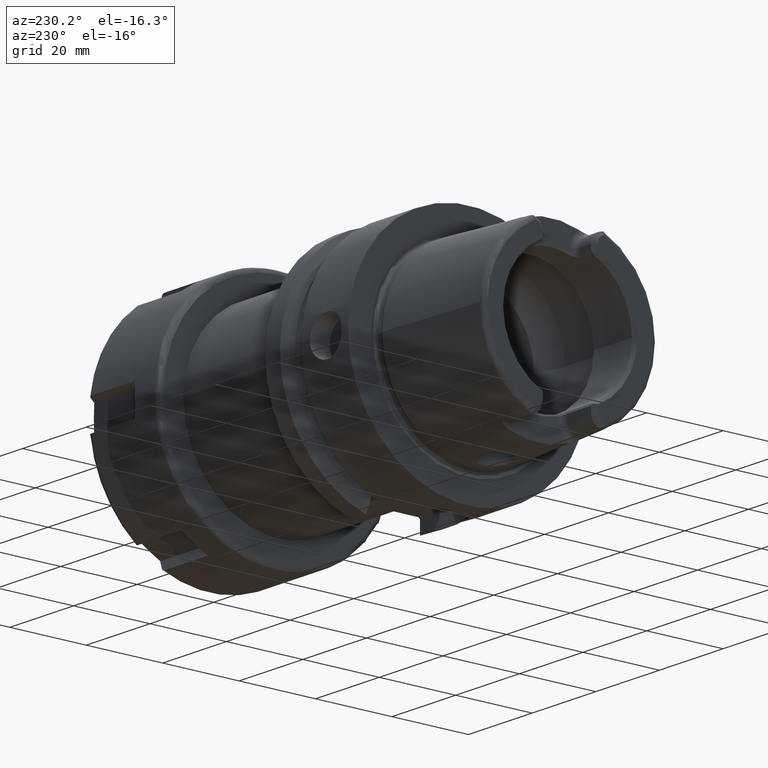
[diagram: clean part render]
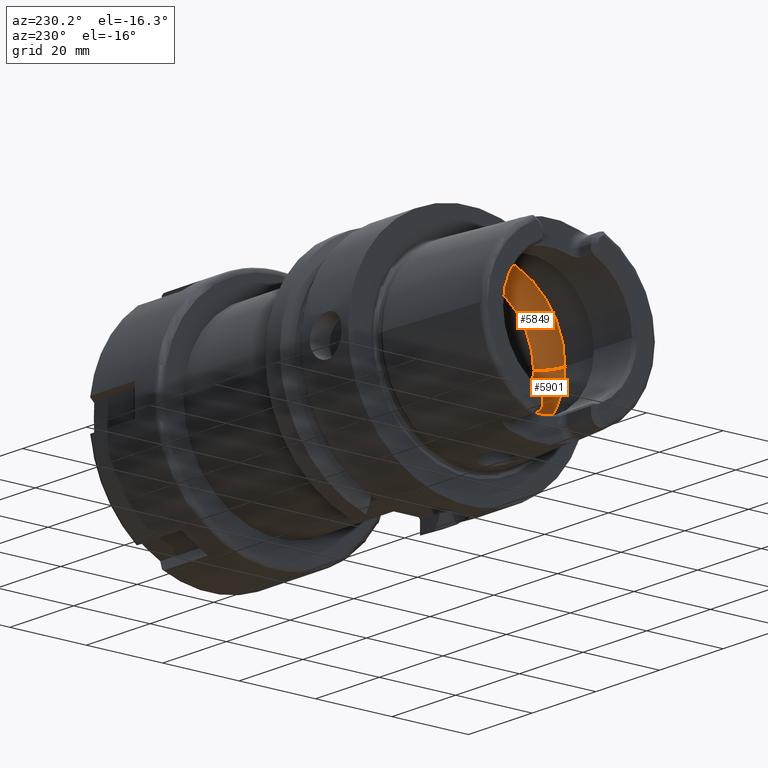
[diagram: same view with one multi-face feature highlighted, each face labeled with its STEP entity id]
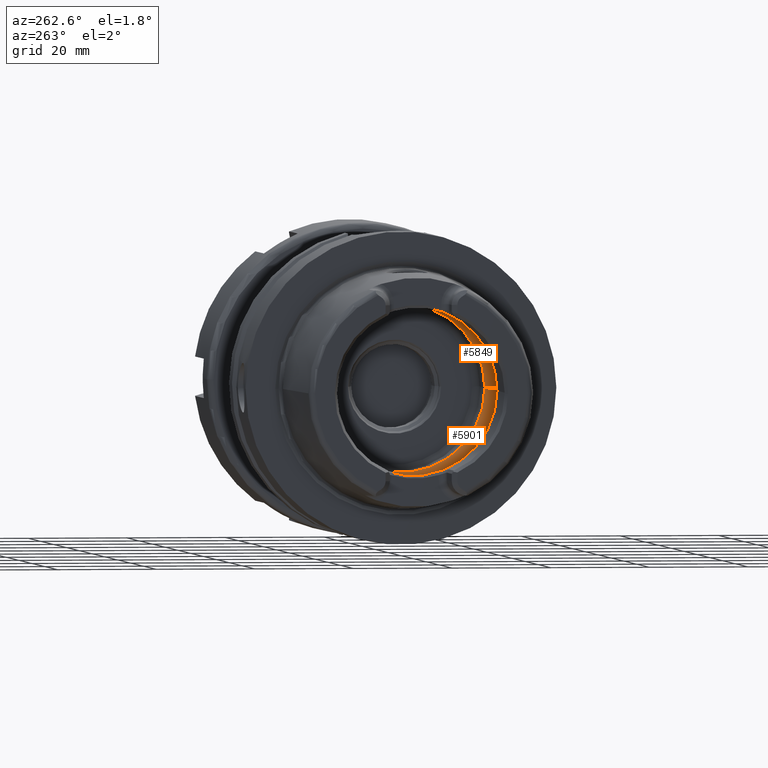
[diagram: same view with one multi-face feature highlighted, each face labeled with its STEP entity id]
A machine part, auxiliary view. The highlighted faces form ONE feature: a constant-radius fillet chain: 2 tangent blend faces with common blend radius 8 mm. The faces share edges in the B-rep.
A second angle (auxiliary view) of the same feature is appended — it is thin or edge-on in the first view.
Their STEP definitions:
[1] entity #5849 (Torus):
#2210=CARTESIAN_POINT('',(-5.25E0,0.E0,1.992470689575E1));
#2211=CARTESIAN_POINT('',(-5.25E0,1.634249880127E-1,1.992470689575E1));
#2212=CARTESIAN_POINT('',(-5.271317000323E0,4.905125142286E-1,
1.992366860007E1));
#2213=CARTESIAN_POINT('',(-5.367938073203E0,9.753406287590E-1,
1.991846757388E1));
#2214=CARTESIAN_POINT('',(-5.525913254439E0,1.440181253243E0,1.990841194030E1));
#2215=CARTESIAN_POINT('',(-5.745012466850E0,1.883704211740E0,1.989126222791E1));
#2216=CARTESIAN_POINT('',(-6.017092970824E0,2.289932260455E0,1.986481338490E1));
#2217=CARTESIAN_POINT('',(-6.231037578916E0,2.534045566496E0,1.983915065875E1));
#2218=CARTESIAN_POINT('',(-6.344997998398E0,2.648294615690E0,1.982388800484E1));
#2220=CARTESIAN_POINT('',(-6.344997998398E0,-2.648294615690E0,
1.982388800484E1));
#2221=CARTESIAN_POINT('',(-6.231045843136E0,-2.534053851646E0,
1.983914955193E1));
#2222=CARTESIAN_POINT('',(-6.017093742818E0,-2.289943440357E0,
1.986481395775E1));
#2223=CARTESIAN_POINT('',(-5.744901596897E0,-1.883527876206E0,
1.989127237006E1));
#2224=CARTESIAN_POINT('',(-5.525828432433E0,-1.439963272778E0,
1.990841763195E1));
#2225=CARTESIAN_POINT('',(-5.367908372542E0,-9.752317929729E-1,
1.991846926373E1));
#2226=CARTESIAN_POINT('',(-5.271289109403E0,-4.903031116233E-1,
1.992367002777E1));
#2227=CARTESIAN_POINT('',(-5.25E0,-1.633414179458E-1,1.992470689575E1));
#2228=CARTESIAN_POINT('',(-5.25E0,0.E0,1.992470689575E1));
#2230=CARTESIAN_POINT('',(-1.E-1,0.E0,0.E0));
#2231=DIRECTION('',(1.E0,0.E0,0.E0));
#2232=DIRECTION('',(0.E0,1.E0,0.E0));
#2233=AXIS2_PLACEMENT_3D('',#2230,#2231,#2232);
#2255=CARTESIAN_POINT('',(-6.344997998398E0,0.E0,0.E0));
#2256=DIRECTION('',(1.E0,0.E0,0.E0));
#2257=DIRECTION('',(0.E0,1.E0,0.E0));
#2258=AXIS2_PLACEMENT_3D('',#2255,#2256,#2257);
#2260=CARTESIAN_POINT('',(-6.344997998398E0,0.E0,0.E0));
#2261=DIRECTION('',(1.E0,0.E0,0.E0));
#2262=DIRECTION('',(0.E0,-1.324147307845E-1,9.911944002421E-1));
#2263=AXIS2_PLACEMENT_3D('',#2260,#2261,#2262);
#2353=CARTESIAN_POINT('',(-6.344997998398E0,1.2E1,0.E0));
#2354=DIRECTION('',(0.E0,0.E0,1.E0));
#2355=DIRECTION('',(7.806247497998E-1,6.25E-1,0.E0));
#2356=AXIS2_PLACEMENT_3D('',#2353,#2354,#2355);
#2363=CARTESIAN_POINT('',(-6.344997998398E0,-1.2E1,0.E0));
#2364=DIRECTION('',(0.E0,0.E0,-1.E0));
#2365=DIRECTION('',(7.806247497998E-1,-6.25E-1,0.E0));
#2366=AXIS2_PLACEMENT_3D('',#2363,#2364,#2365);
#2632=CARTESIAN_POINT('',(-1.E-1,1.7E1,0.E0));
#2633=VERTEX_POINT('',#2632);
#2634=CARTESIAN_POINT('',(-6.344997998398E0,2.E1,0.E0));
#2635=VERTEX_POINT('',#2634);
#2644=CARTESIAN_POINT('',(-1.E-1,-1.7E1,0.E0));
#2645=VERTEX_POINT('',#2644);
#2646=CARTESIAN_POINT('',(-6.344997998398E0,-2.E1,0.E0));
#2647=VERTEX_POINT('',#2646);
#2815=VERTEX_POINT('',#2210);
#2816=VERTEX_POINT('',#2218);
#2817=VERTEX_POINT('',#2220);
#5830=CARTESIAN_POINT('',(-6.344997998398E0,0.E0,0.E0));
#5831=DIRECTION('',(1.E0,0.E0,0.E0));
#5832=DIRECTION('',(0.E0,-1.E0,0.E0));
#5833=AXIS2_PLACEMENT_3D('',#5830,#5831,#5832);
#5834=TOROIDAL_SURFACE('',#5833,1.2E1,8.E0);
#5835=ORIENTED_EDGE('',*,*,#5807,.F.);
#5836=ORIENTED_EDGE('',*,*,#5573,.F.);
#5838=ORIENTED_EDGE('',*,*,#5837,.T.);
#5840=ORIENTED_EDGE('',*,*,#5839,.F.);
#5842=ORIENTED_EDGE('',*,*,#5841,.F.);
#5844=ORIENTED_EDGE('',*,*,#5843,.T.);
#5846=ORIENTED_EDGE('',*,*,#5845,.T.);
#5847=EDGE_LOOP('',(#5835,#5836,#5838,#5840,#5842,#5844,#5846));
#5848=FACE_OUTER_BOUND('',#5847,.F.);
#5849=ADVANCED_FACE('',(#5848),#5834,.F.);
#2219=B_SPLINE_CURVE_WITH_KNOTS('',3,(#2210,#2211,#2212,#2213,#2214,#2215,#2216,
#2217,#2218),.UNSPECIFIED.,.F.,.F.,(4,1,1,1,1,1,4),(0.E0,1.666666666667E-1,
3.333333333333E-1,5.E-1,6.666666666667E-1,8.333333333333E-1,1.E0),
.UNSPECIFIED.);
#2229=B_SPLINE_CURVE_WITH_KNOTS('',3,(#2220,#2221,#2222,#2223,#2224,#2225,#2226,
#2227,#2228),.UNSPECIFIED.,.F.,.F.,(4,1,1,1,1,1,4),(0.E0,1.666666666667E-1,
3.333333333333E-1,5.E-1,6.666666666667E-1,8.333333333333E-1,1.E0),
.UNSPECIFIED.);
#2234=CIRCLE('',#2233,1.7E1);
#2259=CIRCLE('',#2258,2.E1);
#2264=CIRCLE('',#2263,2.E1);
#2357=CIRCLE('',#2356,8.E0);
#2367=CIRCLE('',#2366,8.E0);
#5573=EDGE_CURVE('',#2817,#2815,#2229,.T.);
#5807=EDGE_CURVE('',#2815,#2816,#2219,.T.);
#5837=EDGE_CURVE('',#2817,#2647,#2264,.T.);
#5839=EDGE_CURVE('',#2645,#2647,#2367,.T.);
#5841=EDGE_CURVE('',#2633,#2645,#2234,.T.);
#5843=EDGE_CURVE('',#2633,#2635,#2357,.T.);
#5845=EDGE_CURVE('',#2635,#2816,#2259,.T.);
[2] entity #5901 (Torus):
#2325=CARTESIAN_POINT('',(-6.344997998398E0,0.E0,0.E0));
#2326=DIRECTION('',(-1.E0,0.E0,0.E0));
#2327=DIRECTION('',(0.E0,-1.324147307845E-1,-9.911944002421E-1));
#2328=AXIS2_PLACEMENT_3D('',#2325,#2326,#2327);
#2338=CARTESIAN_POINT('',(-6.344997998398E0,0.E0,0.E0));
#2339=DIRECTION('',(-1.E0,0.E0,0.E0));
#2340=DIRECTION('',(0.E0,1.E0,0.E0));
#2341=AXIS2_PLACEMENT_3D('',#2338,#2339,#2340);
#2343=CARTESIAN_POINT('',(-6.344997998398E0,2.648294615690E0,
-1.982388800484E1));
#2344=CARTESIAN_POINT('',(-6.231006837183E0,2.534014746903E0,
-1.983915477598E1));
#2345=CARTESIAN_POINT('',(-6.017025196500E0,2.289847772066E0,
-1.986482090135E1));
#2346=CARTESIAN_POINT('',(-5.744951143506E0,1.883597112482E0,
-1.989126748234E1));
#2347=CARTESIAN_POINT('',(-5.525878619397E0,1.440092942940E0,
-1.990841427492E1));
#2348=CARTESIAN_POINT('',(-5.367928580614E0,9.752961668640E-1,
-1.991846807626E1));
#2349=CARTESIAN_POINT('',(-5.271318281982E0,4.905129038781E-1,
-1.992366853166E1));
#2350=CARTESIAN_POINT('',(-5.25E0,1.634283701959E-1,-1.992470689575E1));
#2351=CARTESIAN_POINT('',(-5.25E0,0.E0,-1.992470689575E1));
#2353=CARTESIAN_POINT('',(-6.344997998398E0,1.2E1,0.E0));
#2354=DIRECTION('',(0.E0,0.E0,1.E0));
#2355=DIRECTION('',(7.806247497998E-1,6.25E-1,0.E0));
#2356=AXIS2_PLACEMENT_3D('',#2353,#2354,#2355);
#2358=CARTESIAN_POINT('',(-1.E-1,0.E0,0.E0));
#2359=DIRECTION('',(-1.E0,0.E0,0.E0));
#2360=DIRECTION('',(0.E0,1.E0,0.E0));
#2361=AXIS2_PLACEMENT_3D('',#2358,#2359,#2360);
#2363=CARTESIAN_POINT('',(-6.344997998398E0,-1.2E1,0.E0));
#2364=DIRECTION('',(0.E0,0.E0,-1.E0));
#2365=DIRECTION('',(7.806247497998E-1,-6.25E-1,0.E0));
#2366=AXIS2_PLACEMENT_3D('',#2363,#2364,#2365);
#2368=CARTESIAN_POINT('',(-5.25E0,0.E0,-1.992470689575E1));
#2369=CARTESIAN_POINT('',(-5.25E0,-1.633406105217E-1,-1.992470689575E1));
#2370=CARTESIAN_POINT('',(-5.271288835069E0,-4.903023440841E-1,
-1.992367004204E1));
#2371=CARTESIAN_POINT('',(-5.367909615515E0,-9.752378390196E-1,
-1.991846919896E1));
#2372=CARTESIAN_POINT('',(-5.525833514658E0,-1.439976302563E0,
-1.990841729053E1));
#2373=CARTESIAN_POINT('',(-5.744910891080E0,-1.883544144465E0,
-1.989127157512E1));
#2374=CARTESIAN_POINT('',(-6.017104191130E0,-2.289956477197E0,
-1.986481279983E1));
#2375=CARTESIAN_POINT('',(-6.231050600033E0,-2.534058620591E0,
-1.983914891484E1));
#2376=CARTESIAN_POINT('',(-6.344997998398E0,-2.648294615690E0,
-1.982388800484E1));
#2632=CARTESIAN_POINT('',(-1.E-1,1.7E1,0.E0));
#2633=VERTEX_POINT('',#2632);
#2634=CARTESIAN_POINT('',(-6.344997998398E0,2.E1,0.E0));
#2635=VERTEX_POINT('',#2634);
#2644=CARTESIAN_POINT('',(-1.E-1,-1.7E1,0.E0));
#2645=VERTEX_POINT('',#2644);
#2646=CARTESIAN_POINT('',(-6.344997998398E0,-2.E1,0.E0));
#2647=VERTEX_POINT('',#2646);
#2819=VERTEX_POINT('',#2343);
#2820=VERTEX_POINT('',#2351);
#2821=VERTEX_POINT('',#2376);
#5886=CARTESIAN_POINT('',(-6.344997998398E0,0.E0,0.E0));
#5887=DIRECTION('',(1.E0,0.E0,0.E0));
#5888=DIRECTION('',(0.E0,-1.E0,0.E0));
#5889=AXIS2_PLACEMENT_3D('',#5886,#5887,#5888);
#5890=TOROIDAL_SURFACE('',#5889,1.2E1,8.E0);
#5891=ORIENTED_EDGE('',*,*,#5824,.F.);
#5892=ORIENTED_EDGE('',*,*,#5881,.F.);
#5893=ORIENTED_EDGE('',*,*,#5843,.F.);
#5895=ORIENTED_EDGE('',*,*,#5894,.T.);
#5896=ORIENTED_EDGE('',*,*,#5839,.T.);
#5897=ORIENTED_EDGE('',*,*,#5875,.F.);
#5898=ORIENTED_EDGE('',*,*,#5588,.F.);
#5899=EDGE_LOOP('',(#5891,#5892,#5893,#5895,#5896,#5897,#5898));
#5900=FACE_OUTER_BOUND('',#5899,.F.);
#5901=ADVANCED_FACE('',(#5900),#5890,.F.);
#2329=CIRCLE('',#2328,2.E1);
#2342=CIRCLE('',#2341,2.E1);
#2352=B_SPLINE_CURVE_WITH_KNOTS('',3,(#2343,#2344,#2345,#2346,#2347,#2348,#2349,
#2350,#2351),.UNSPECIFIED.,.F.,.F.,(4,1,1,1,1,1,4),(0.E0,1.666666666667E-1,
3.333333333333E-1,5.E-1,6.666666666667E-1,8.333333333333E-1,1.E0),
.UNSPECIFIED.);
#2357=CIRCLE('',#2356,8.E0);
#2362=CIRCLE('',#2361,1.7E1);
#2367=CIRCLE('',#2366,8.E0);
#2377=B_SPLINE_CURVE_WITH_KNOTS('',3,(#2368,#2369,#2370,#2371,#2372,#2373,#2374,
#2375,#2376),.UNSPECIFIED.,.F.,.F.,(4,1,1,1,1,1,4),(0.E0,1.666666666667E-1,
3.333333333333E-1,5.E-1,6.666666666667E-1,8.333333333333E-1,1.E0),
.UNSPECIFIED.);
#5588=EDGE_CURVE('',#2820,#2821,#2377,.T.);
#5824=EDGE_CURVE('',#2819,#2820,#2352,.T.);
#5839=EDGE_CURVE('',#2645,#2647,#2367,.T.);
#5843=EDGE_CURVE('',#2633,#2635,#2357,.T.);
#5875=EDGE_CURVE('',#2821,#2647,#2329,.T.);
#5881=EDGE_CURVE('',#2635,#2819,#2342,.T.);
#5894=EDGE_CURVE('',#2633,#2645,#2362,.T.);